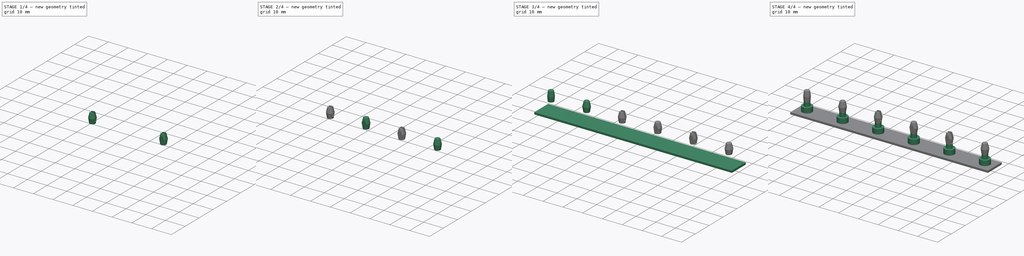
[diagram: build sequence overview — one tinted view per stage of 4, left to right]
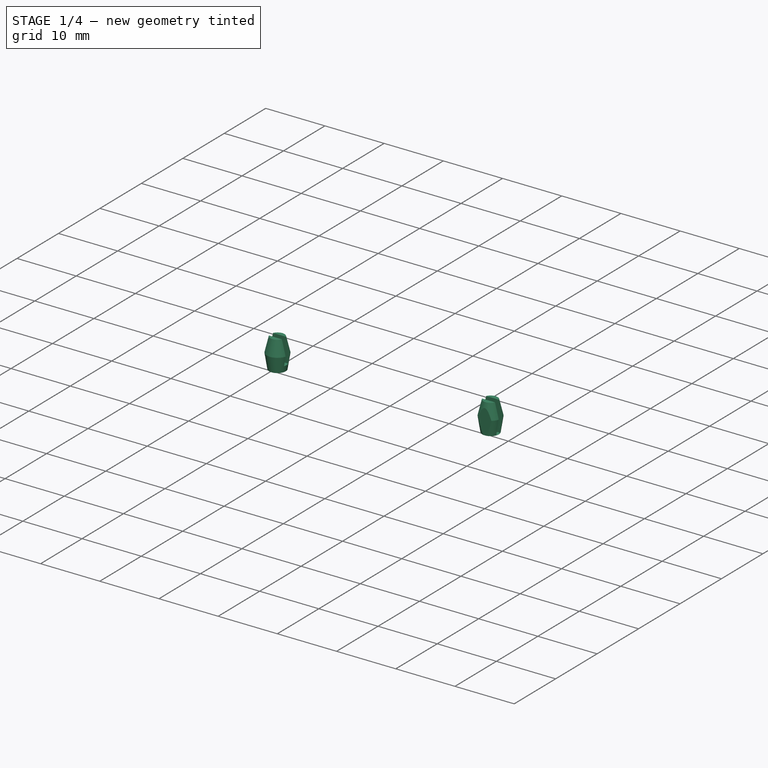
[diagram: stage 1 of 4 — iso view after this stage's code; geometry added in this stage tinted green]
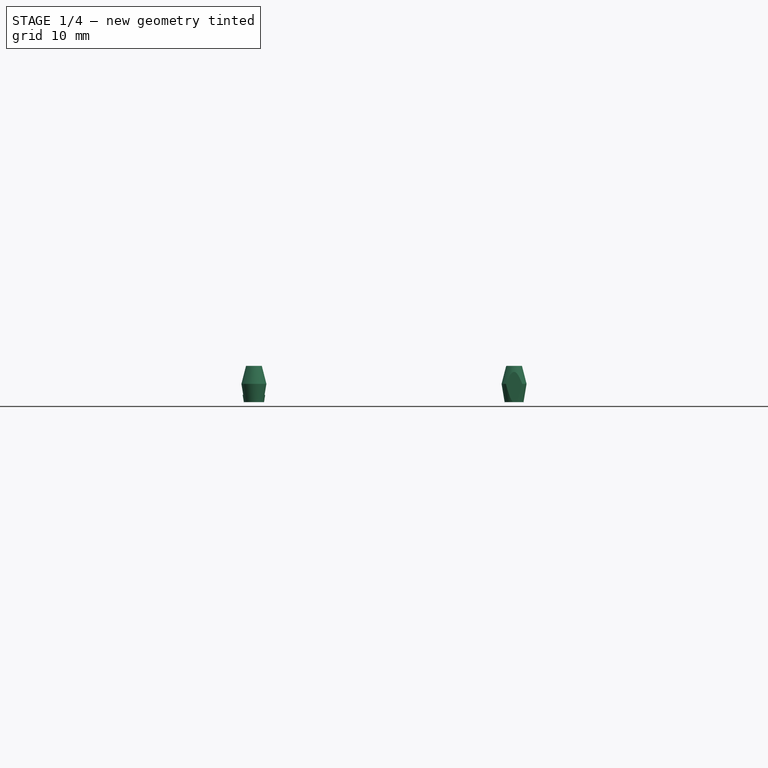
[diagram: stage 1 of 4 — front view after this stage's code; geometry added in this stage tinted green]
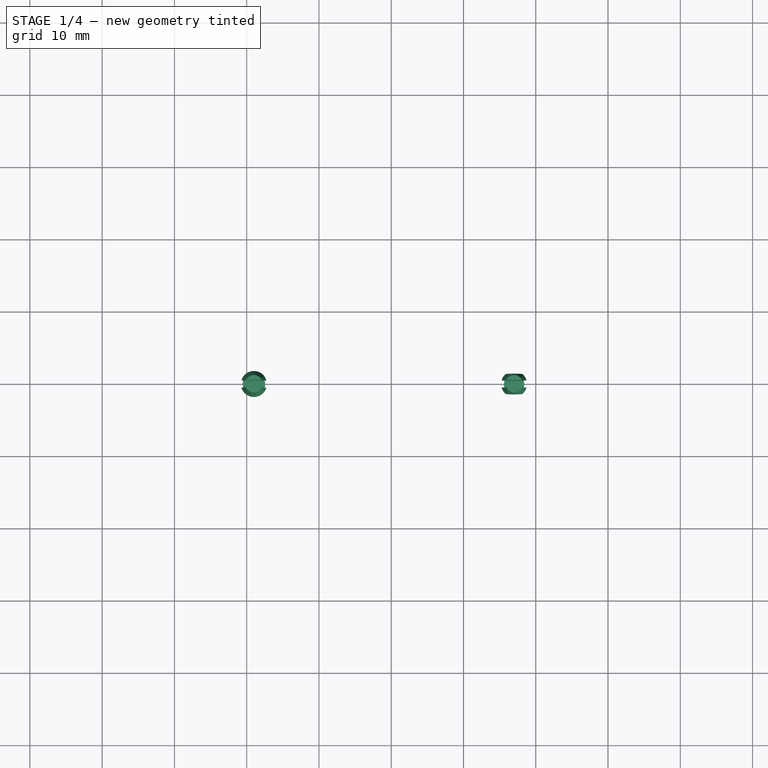
[diagram: stage 1 of 4 — top view after this stage's code; geometry added in this stage tinted green]
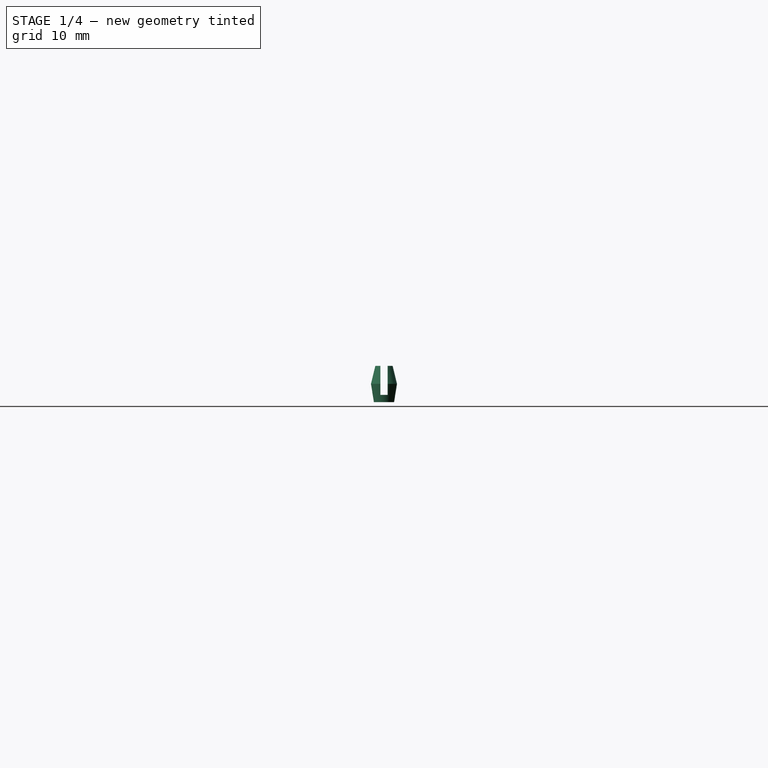
[diagram: stage 1 of 4 — right view after this stage's code; geometry added in this stage tinted green]
FCSTD DOCUMENT  (FreeCAD 0.15R4669 (Git))
Label: clip_test
License: All rights reserved
LicenseURL: http://en.wikipedia.org/wiki/All_rights_reserved
objects: Sketcher::SketchObject×12, PartDesign::Revolution×6, PartDesign::Pad×3, PartDesign::Pocket×3, PartDesign::LinearPattern×2
note: 38 computed .brp shape members not serialized (recipe doc carries the construction recipe); baked Part::Feature solids carry a one-line shape summary decoded from their .brp

FEATURE [Sketcher::SketchObject] Sketch005
  Placement = pos=(0,0,0) rot=(1,0,0;1.5708rad)
  sketch-geometry (6):
    g0: LineSegment StartX=-9 StartY=5.49 StartZ=0 EndX=-9 EndY=10.49 EndZ=0
    g1: LineSegment StartX=-9 StartY=10.49 StartZ=0 EndX=-10.2 EndY=10.49 EndZ=0
    g2: LineSegment StartX=-10.2 StartY=10.49 StartZ=0 EndX=-10.8 EndY=8.01 EndZ=0
    g3: LineSegment StartX=-10.8 StartY=8.01 StartZ=0 EndX=-10.4 EndY=5.49 EndZ=0
    g4: LineSegment StartX=-10.4 StartY=5.49 StartZ=0 EndX=-9 EndY=5.49 EndZ=0
    g5: LineSegment [constr] StartX=-9 StartY=14.9948 StartZ=0 EndX=-9 EndY=20 EndZ=0
  constraints (17):
    c: Vertical(g0)
    c: Coincident(g0,g1)
    c: Coincident(g1,g2)
    c: Coincident(g2,g3)
    c: Coincident(g3,g4)
    c: Coincident(g4,g0)
    c: DistanceX(g-1,g0) = -9
    c: Horizontal(g1)
    c: Horizontal(g4)
    c: Equal(g3,g2)
    c: DistanceX(g2,g0) = 1.8
    c: DistanceX(g3,g0) = 1.4
    c: DistanceX(g1,g0) = 1.2
    c: DistanceY(g-1,g0) = 5.49
    c: DistanceY(g0,g3) = -5
    c: Vertical(g5)
    c: DistanceX(g5,g0) = 0
FEATURE [PartDesign::Revolution] Revolution002
  Angle = 360
  Axis = (0,0,5.00523)
  Base = (-9,0,14.9948)
  Placement = pos=(0,0,0) rot=(1,0,0;1.5708rad)
  ReferenceAxis = -> Sketch005 [Axis0]
  Sketch = -> Sketch005
FEATURE [Sketcher::SketchObject] Sketch007
  Placement = pos=(0,0,0) rot=(1,0,0;1.5708rad)
  sketch-geometry (6):
    g0: LineSegment StartX=27 StartY=5.49 StartZ=0 EndX=27 EndY=10.49 EndZ=0
    g1: LineSegment StartX=27 StartY=10.49 StartZ=0 EndX=25.8 EndY=10.49 EndZ=0
    g2: LineSegment StartX=25.8 StartY=10.49 StartZ=0 EndX=25.2 EndY=8.01 EndZ=0
    g3: LineSegment StartX=25.2 StartY=8.01 StartZ=0 EndX=25.6 EndY=5.49 EndZ=0
    g4: LineSegment StartX=25.6 StartY=5.49 StartZ=0 EndX=27 EndY=5.49 EndZ=0
    g5: LineSegment [constr] StartX=27 StartY=14.6475 StartZ=0 EndX=27 EndY=20 EndZ=0
  constraints (17):
    c: Vertical(g0)
    c: Coincident(g0,g1)
    c: Coincident(g1,g2)
    c: Coincident(g2,g3)
    c: Coincident(g3,g4)
    c: Coincident(g4,g0)
    c: Horizontal(g1)
    c: Horizontal(g4)
    c: Equal(g3,g2)
    c: DistanceX(g2,g0) = 1.8
    c: DistanceX(g3,g0) = 1.4
    c: DistanceX(g1,g0) = 1.2
    c: DistanceY(g-1,g0) = 5.49
    c: DistanceY(g0,g3) = -5
    c: Vertical(g5)
    c: DistanceX(g5,g0) = 0
    c: DistanceX(g-1,g0) = 27
FEATURE [PartDesign::Revolution] Revolution004
  Angle = 360
  Axis = (0,0,5.35254)
  Base = (27,0,14.6475)
  Placement = pos=(0,0,0) rot=(1,0,0;1.5708rad)
  ReferenceAxis = -> Sketch007 [Axis0]
  Sketch = -> Sketch007
FEATURE [Sketcher::SketchObject] Sketch010
  ExternalGeometry = -> [Revolution002]
  Placement = pos=(0,0,10.49) rot=(0,0,1;3.14159rad)
  Support = -> Revolution002 [Face1]
  sketch-geometry (4):
    g0: LineSegment StartX=2.78732 StartY=0.5 StartZ=0 EndX=16.5607 EndY=0.5 EndZ=0
    g1: LineSegment StartX=16.5607 StartY=0.5 StartZ=0 EndX=16.5607 EndY=-0.5 EndZ=0
    g2: LineSegment StartX=16.5607 StartY=-0.5 StartZ=0 EndX=2.78732 EndY=-0.5 EndZ=0
    g3: LineSegment StartX=2.78732 StartY=-0.5 StartZ=0 EndX=2.78732 EndY=0.5 EndZ=0
  constraints (10):
    c: Coincident(g0,g1)
    c: Coincident(g1,g2)
    c: Coincident(g2,g3)
    c: Coincident(g3,g0)
    c: Horizontal(g0)
    c: Horizontal(g2)
    c: Vertical(g1)
    c: Vertical(g3)
    c: DistanceY(g2,g-3) = 0.5
    c: DistanceY(g0,g2) = -1
FEATURE [PartDesign::Pocket] Pocket001
  Length = 4
  Placement = pos=(0,0,0) rot=(1,0,0;1.5708rad)
  Sketch = -> Sketch010
  Type = 0
FEATURE [Sketcher::SketchObject] Sketch011
  ExternalGeometry = -> [Revolution004]
  Placement = pos=(0,0,10.49) rot=(0,0,1;3.14159rad)
  Support = -> Revolution004 [Face1]
  sketch-geometry (12):
    g0: LineSegment StartX=-20 StartY=-0.5 StartZ=0 EndX=-34.5975 EndY=-0.5 EndZ=0
    g1: LineSegment StartX=-34.5975 StartY=-0.5 StartZ=0 EndX=-34.5975 EndY=0.5 EndZ=0
    g2: LineSegment StartX=-34.5975 StartY=0.5 StartZ=0 EndX=-20 EndY=0.5 EndZ=0
    g3: LineSegment StartX=-20 StartY=0.5 StartZ=0 EndX=-20 EndY=-0.5 EndZ=0
    g4: LineSegment StartX=-17.8728 StartY=-10 StartZ=0 EndX=-35.7219 EndY=-10 EndZ=0
    g5: LineSegment StartX=-35.7219 StartY=-10 StartZ=0 EndX=-35.7219 EndY=-1.4 EndZ=0
    g6: LineSegment StartX=-35.7219 StartY=-1.4 StartZ=0 EndX=-17.8728 EndY=-1.4 EndZ=0
    g7: LineSegment StartX=-17.8728 StartY=-1.4 StartZ=0 EndX=-17.8728 EndY=-10 EndZ=0
    g8: LineSegment StartX=-16.5517 StartY=10 StartZ=0 EndX=-35.5251 EndY=10 EndZ=0
    g9: LineSegment StartX=-35.5251 StartY=10 StartZ=0 EndX=-35.5251 EndY=1.4 EndZ=0
    g10: LineSegment StartX=-35.5251 StartY=1.4 StartZ=0 EndX=-16.5517 EndY=1.4 EndZ=0
    g11: LineSegment StartX=-16.5517 StartY=1.4 StartZ=0 EndX=-16.5517 EndY=10 EndZ=0
  constraints (28):
    c: Coincident(g0,g1)
    c: Coincident(g1,g2)
    c: Coincident(g2,g3)
    c: Coincident(g3,g0)
    c: Horizontal(g0)
    c: Horizontal(g2)
    c: Vertical(g1)
    c: Vertical(g3)
    c: DistanceY(g2,g-3) = -0.5
    c: DistanceY(g-3,g0) = -0.5
    c: Coincident(g4,g5)
    c: Coincident(g5,g6)
    c: Coincident(g6,g7)
    c: Coincident(g7,g4)
    c: Horizontal(g4)
    c: Horizontal(g6)
    c: Vertical(g5)
    c: Vertical(g7)
    c: DistanceY(g-3,g6) = -1.4
    c: Coincident(g8,g9)
    c: Coincident(g9,g10)
    c: Coincident(g10,g11)
    c: Coincident(g11,g8)
    c: Horizontal(g8)
    c: Horizontal(g10)
    c: Vertical(g9)
    c: Vertical(g11)
    c: DistanceY(g10,g-3) = -1.4
FEATURE [PartDesign::Pocket] Pocket002
  Length = 4.99
  Placement = pos=(0,0,0) rot=(1,0,0;1.5708rad)
  Sketch = -> Sketch011
  Type = 0
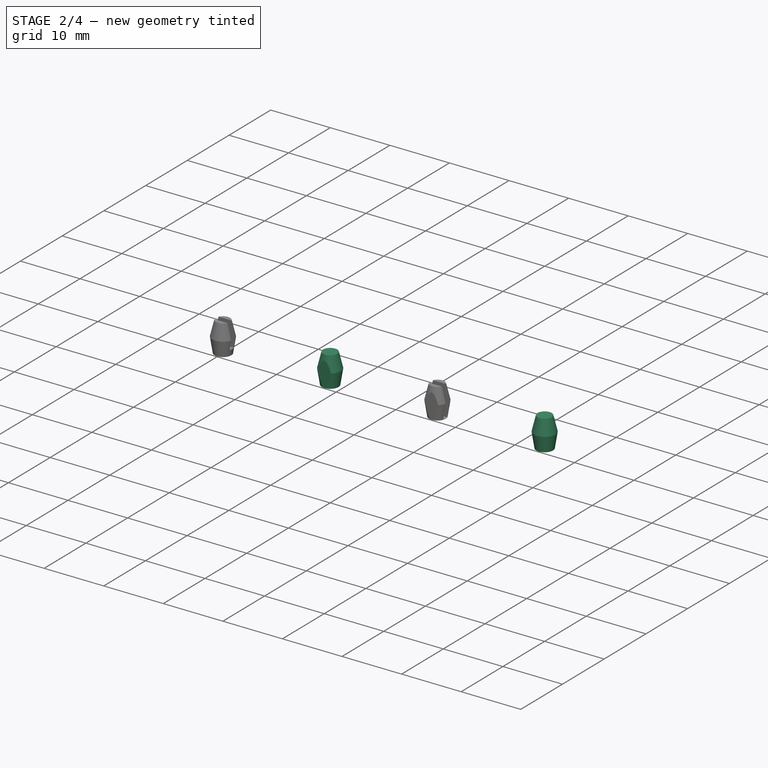
[diagram: stage 2 of 4 — iso view after this stage's code; geometry added in this stage tinted green]
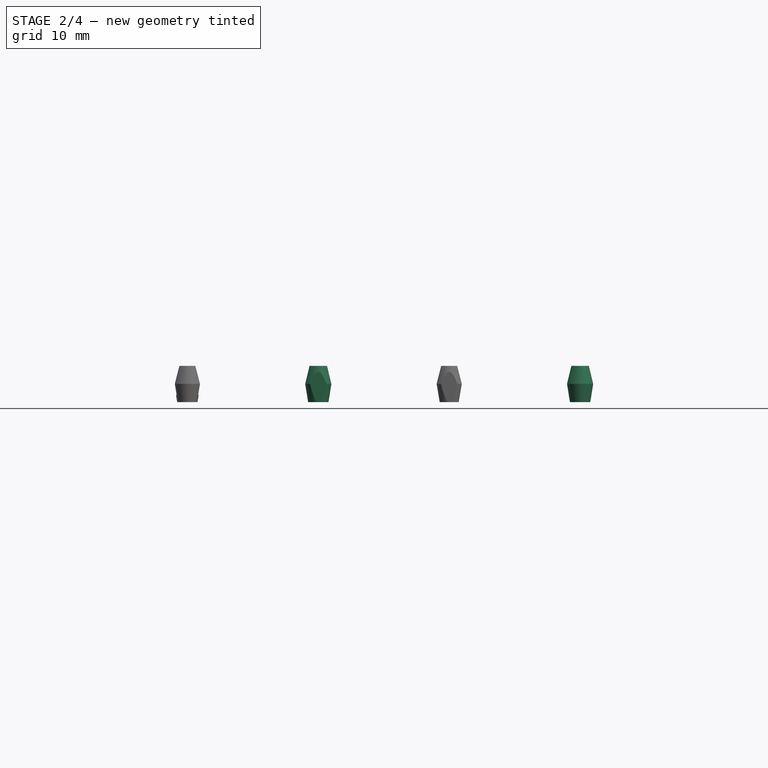
[diagram: stage 2 of 4 — front view after this stage's code; geometry added in this stage tinted green]
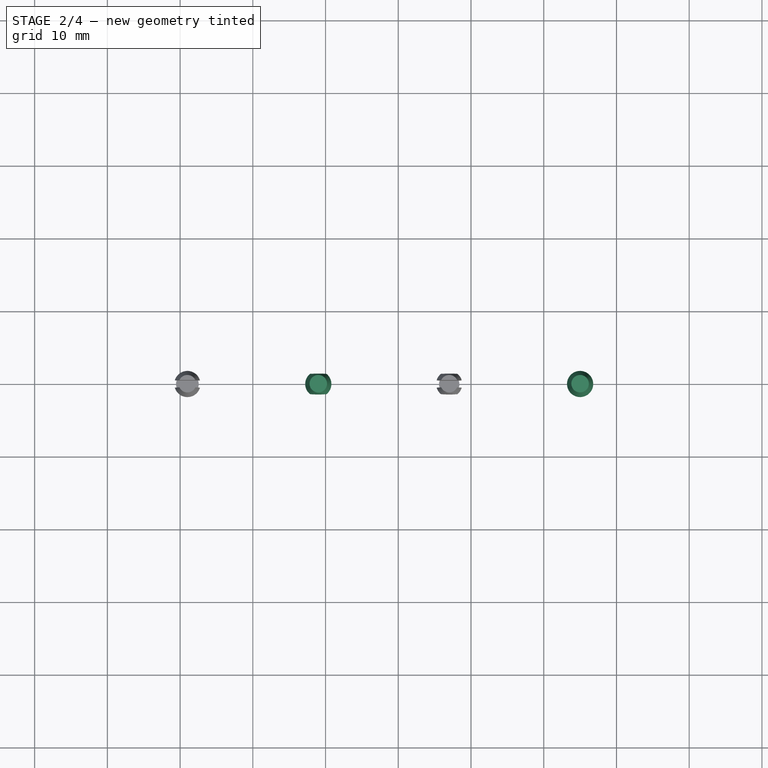
[diagram: stage 2 of 4 — top view after this stage's code; geometry added in this stage tinted green]
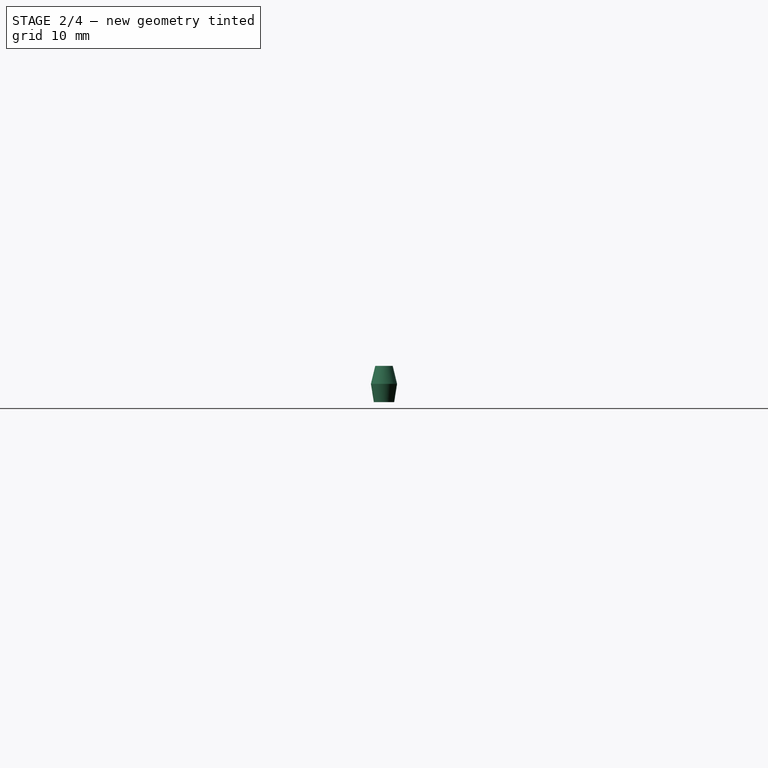
[diagram: stage 2 of 4 — right view after this stage's code; geometry added in this stage tinted green]
FEATURE [Sketcher::SketchObject] Sketch006
  Placement = pos=(0,0,0) rot=(1,0,0;1.5708rad)
  sketch-geometry (6):
    g0: LineSegment StartX=9 StartY=5.49 StartZ=0 EndX=9 EndY=10.49 EndZ=0
    g1: LineSegment StartX=9 StartY=10.49 StartZ=0 EndX=7.8 EndY=10.49 EndZ=0
    g2: LineSegment StartX=7.8 StartY=10.49 StartZ=0 EndX=7.2 EndY=8.01 EndZ=0
    g3: LineSegment StartX=7.2 StartY=8.01 StartZ=0 EndX=7.6 EndY=5.49 EndZ=0
    g4: LineSegment StartX=7.6 StartY=5.49 StartZ=0 EndX=9 EndY=5.49 EndZ=0
    g5: LineSegment [constr] StartX=9 StartY=14.6475 StartZ=0 EndX=9 EndY=20 EndZ=0
  constraints (17):
    c: Vertical(g0)
    c: Coincident(g0,g1)
    c: Coincident(g1,g2)
    c: Coincident(g2,g3)
    c: Coincident(g3,g4)
    c: Coincident(g4,g0)
    c: Horizontal(g1)
    c: Horizontal(g4)
    c: Equal(g3,g2)
    c: DistanceX(g2,g0) = 1.8
    c: DistanceX(g3,g0) = 1.4
    c: DistanceX(g1,g0) = 1.2
    c: DistanceY(g-1,g0) = 5.49
    c: DistanceY(g0,g3) = -5
    c: Vertical(g5)
    c: DistanceX(g5,g0) = 0
    c: DistanceX(g-1,g0) = 9
FEATURE [PartDesign::Revolution] Revolution003
  Angle = 360
  Axis = (0,0,5.35254)
  Base = (9,0,14.6475)
  Placement = pos=(0,0,0) rot=(1,0,0;1.5708rad)
  ReferenceAxis = -> Sketch006 [Axis0]
  Sketch = -> Sketch006
FEATURE [Sketcher::SketchObject] Sketch008
  Placement = pos=(0,0,0) rot=(1,0,0;1.5708rad)
  sketch-geometry (6):
    g0: LineSegment StartX=45 StartY=5.49 StartZ=0 EndX=45 EndY=10.49 EndZ=0
    g1: LineSegment StartX=45 StartY=10.49 StartZ=0 EndX=43.8 EndY=10.49 EndZ=0
    g2: LineSegment StartX=43.8 StartY=10.49 StartZ=0 EndX=43.2 EndY=8.01 EndZ=0
    g3: LineSegment StartX=43.2 StartY=8.01 StartZ=0 EndX=43.6 EndY=5.49 EndZ=0
    g4: LineSegment StartX=43.6 StartY=5.49 StartZ=0 EndX=45 EndY=5.49 EndZ=0
    g5: LineSegment [constr] StartX=45 StartY=14.6475 StartZ=0 EndX=45 EndY=20 EndZ=0
  constraints (17):
    c: Vertical(g0)
    c: Coincident(g0,g1)
    c: Coincident(g1,g2)
    c: Coincident(g2,g3)
    c: Coincident(g3,g4)
    c: Coincident(g4,g0)
    c: Horizontal(g1)
    c: Horizontal(g4)
    c: Equal(g3,g2)
    c: DistanceX(g2,g0) = 1.8
    c: DistanceX(g3,g0) = 1.4
    c: DistanceX(g1,g0) = 1.2
    c: DistanceY(g-1,g0) = 5.49
    c: DistanceY(g0,g3) = -5
    c: Vertical(g5)
    c: DistanceX(g5,g0) = 0
    c: DistanceX(g-1,g0) = 45
FEATURE [PartDesign::Revolution] Revolution005
  Angle = 360
  Axis = (0,0,5.35254)
  Base = (45,0,14.6475)
  Placement = pos=(0,0,0) rot=(1,0,0;1.5708rad)
  ReferenceAxis = -> Sketch008 [Axis0]
  Sketch = -> Sketch008
FEATURE [Sketcher::SketchObject] Sketch009
  ExternalGeometry = -> [Revolution003]
  Placement = pos=(0,0,10.49) rot=(0,0,1;3.14159rad)
  Support = -> Revolution003 [Face1]
  sketch-geometry (8):
    g0: LineSegment StartX=-12.9855 StartY=4.4 StartZ=0 EndX=-4.97687 EndY=4.4 EndZ=0
    g1: LineSegment StartX=-4.97687 StartY=4.4 StartZ=0 EndX=-4.97687 EndY=1.4 EndZ=0
    g2: LineSegment StartX=-4.97687 StartY=1.4 StartZ=0 EndX=-12.9855 EndY=1.4 EndZ=0
    g3: LineSegment StartX=-12.9855 StartY=1.4 StartZ=0 EndX=-12.9855 EndY=4.4 EndZ=0
    g4: LineSegment StartX=-13.1244 StartY=-4.4 StartZ=0 EndX=-4.94839 EndY=-4.4 EndZ=0
    g5: LineSegment StartX=-4.94839 StartY=-4.4 StartZ=0 EndX=-4.94839 EndY=-1.4 EndZ=0
    g6: LineSegment StartX=-4.94839 StartY=-1.4 StartZ=0 EndX=-13.1244 EndY=-1.4 EndZ=0
    g7: LineSegment StartX=-13.1244 StartY=-1.4 StartZ=0 EndX=-13.1244 EndY=-4.4 EndZ=0
  constraints (20):
    c: Coincident(g0,g1)
    c: Coincident(g1,g2)
    c: Coincident(g2,g3)
    c: Coincident(g3,g0)
    c: Horizontal(g0)
    c: Horizontal(g2)
    c: Vertical(g1)
    c: Vertical(g3)
    c: DistanceY(g1,g-3) = -1.4
    c: Coincident(g4,g5)
    c: Coincident(g5,g6)
    c: Coincident(g6,g7)
    c: Coincident(g7,g4)
    c: Horizontal(g4)
    c: Horizontal(g6)
    c: Vertical(g5)
    c: Vertical(g7)
    c: DistanceY(g6,g-3) = 1.4
    c: DistanceY(g6,g4) = -3
    c: DistanceY(g2,g0) = 3
FEATURE [PartDesign::Pocket] Pocket
  Length = 5
  Placement = pos=(0,0,0) rot=(1,0,0;1.5708rad)
  Sketch = -> Sketch009
  Type = 0
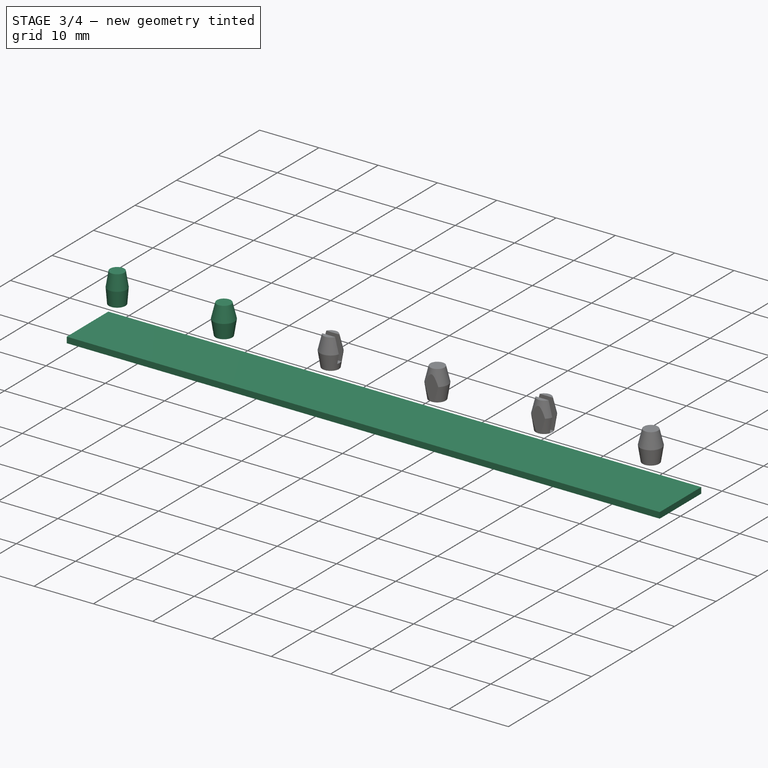
[diagram: stage 3 of 4 — iso view after this stage's code; geometry added in this stage tinted green]
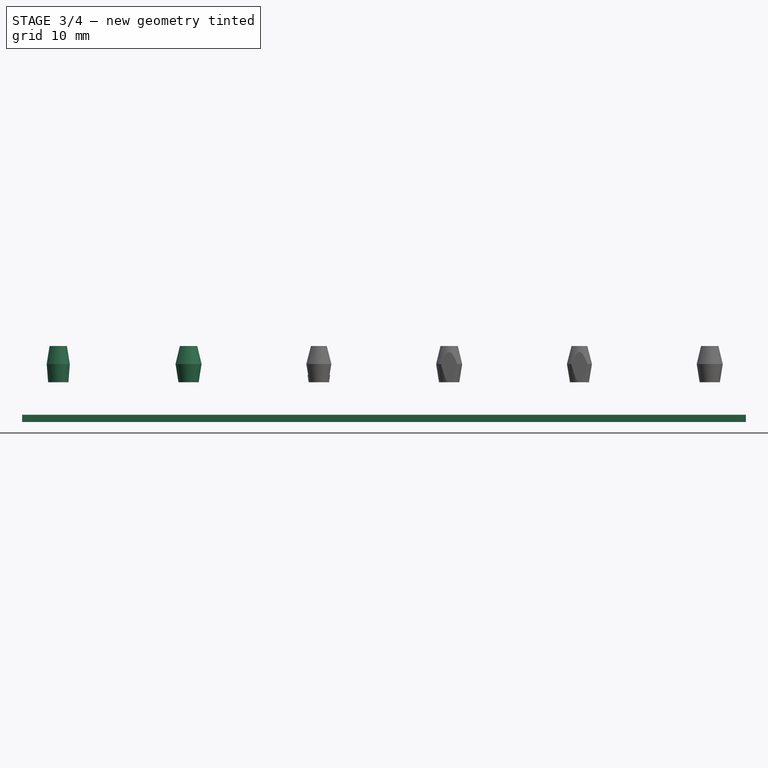
[diagram: stage 3 of 4 — front view after this stage's code; geometry added in this stage tinted green]
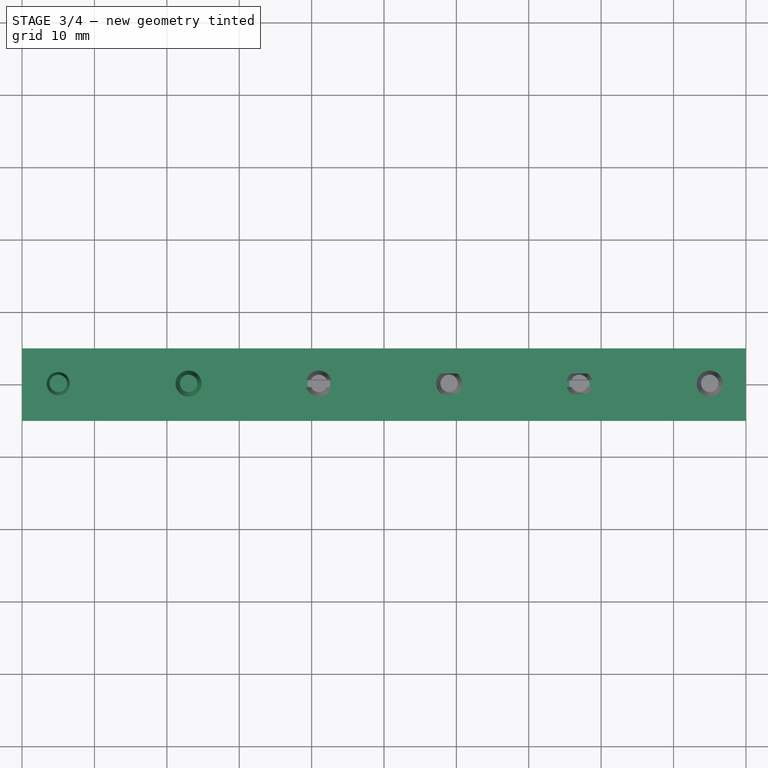
[diagram: stage 3 of 4 — top view after this stage's code; geometry added in this stage tinted green]
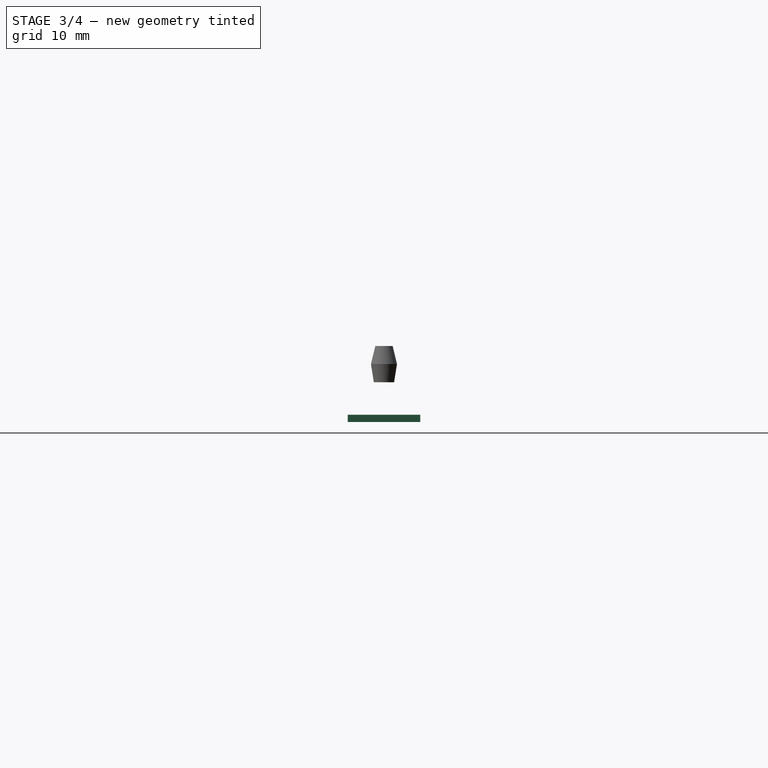
[diagram: stage 3 of 4 — right view after this stage's code; geometry added in this stage tinted green]
FEATURE [Sketcher::SketchObject] Sketch
  sketch-geometry (4):
    g0: LineSegment StartX=-50 StartY=5 StartZ=0 EndX=50 EndY=5 EndZ=0
    g1: LineSegment StartX=50 StartY=5 StartZ=0 EndX=50 EndY=-5 EndZ=0
    g2: LineSegment StartX=50 StartY=-5 StartZ=0 EndX=-50 EndY=-5 EndZ=0
    g3: LineSegment StartX=-50 StartY=-5 StartZ=0 EndX=-50 EndY=5 EndZ=0
  constraints (11):
    c: Coincident(g0,g1)
    c: Coincident(g1,g2)
    c: Coincident(g2,g3)
    c: Coincident(g3,g0)
    c: Horizontal(g0)
    c: Horizontal(g2)
    c: Vertical(g1)
    c: Vertical(g3)
    c: DistanceY(g0,g2) = -10
    c: Symmetric(g0,g1,g-1)
    c: DistanceX(g0,g0) = 100
FEATURE [PartDesign::Pad] Pad
  Length = 1
  Length2 = 100
  Sketch = -> Sketch
  Type = 0
FEATURE [Sketcher::SketchObject] Sketch003
  Placement = pos=(0,0,0) rot=(-1,0,0;4.71239rad)
  sketch-geometry (6):
    g0: LineSegment StartX=-45 StartY=5.49 StartZ=0 EndX=-45 EndY=10.49 EndZ=0
    g1: LineSegment StartX=-45 StartY=10.49 StartZ=0 EndX=-46.2 EndY=10.49 EndZ=0
    g2: LineSegment StartX=-46.2 StartY=10.49 StartZ=0 EndX=-46.6 EndY=8.002 EndZ=0
    g3: LineSegment StartX=-46.6 StartY=8.002 StartZ=0 EndX=-46.4 EndY=5.49 EndZ=0
    g4: LineSegment StartX=-46.4 StartY=5.49 StartZ=0 EndX=-45 EndY=5.49 EndZ=0
    g5: LineSegment [constr] StartX=-45 StartY=14.9948 StartZ=0 EndX=-45 EndY=20 EndZ=0
  constraints (17):
    c: Vertical(g0)
    c: Coincident(g0,g1)
    c: Coincident(g1,g2)
    c: Coincident(g2,g3)
    c: Coincident(g3,g4)
    c: Coincident(g4,g0)
    c: DistanceX(g-1,g0) = -45
    c: Horizontal(g1)
    c: Horizontal(g4)
    c: Equal(g3,g2)
    c: DistanceX(g2,g0) = 1.6
    c: DistanceX(g3,g0) = 1.4
    c: DistanceX(g1,g0) = 1.2
    c: DistanceY(g-1,g0) = 5.49
    c: DistanceY(g0,g3) = -5
    c: Vertical(g5)
    c: DistanceX(g5,g0) = 0
FEATURE [PartDesign::Revolution] Revolution
  Angle = 360
  Axis = (0,0,5.00523)
  Base = (-45,0,14.9948)
  Placement = pos=(0,0,0) rot=(-1,0,0;4.71239rad)
  ReferenceAxis = -> Sketch003 [Axis0]
  Sketch = -> Sketch003
FEATURE [Sketcher::SketchObject] Sketch004
  Placement = pos=(0,0,0) rot=(1,0,0;1.5708rad)
  sketch-geometry (6):
    g0: LineSegment StartX=-27 StartY=5.49 StartZ=0 EndX=-27 EndY=10.49 EndZ=0
    g1: LineSegment StartX=-27 StartY=10.49 StartZ=0 EndX=-28.2 EndY=10.49 EndZ=0
    g2: LineSegment StartX=-28.2 StartY=10.49 StartZ=0 EndX=-28.8 EndY=8.01 EndZ=0
    g3: LineSegment StartX=-28.8 StartY=8.01 StartZ=0 EndX=-28.4 EndY=5.49 EndZ=0
    g4: LineSegment StartX=-28.4 StartY=5.49 StartZ=0 EndX=-27 EndY=5.49 EndZ=0
    g5: LineSegment [constr] StartX=-27 StartY=14.9948 StartZ=0 EndX=-27 EndY=20 EndZ=0
  constraints (17):
    c: Vertical(g0)
    c: Coincident(g0,g1)
    c: Coincident(g1,g2)
    c: Coincident(g2,g3)
    c: Coincident(g3,g4)
    c: Coincident(g4,g0)
    c: DistanceX(g-1,g0) = -27
    c: Horizontal(g1)
    c: Horizontal(g4)
    c: Equal(g3,g2)
    c: DistanceX(g2,g0) = 1.8
    c: DistanceX(g3,g0) = 1.4
    c: DistanceX(g1,g0) = 1.2
    c: DistanceY(g-1,g0) = 5.49
    c: DistanceY(g0,g3) = -5
    c: Vertical(g5)
    c: DistanceX(g5,g0) = 0
FEATURE [PartDesign::Revolution] Revolution001
  Angle = 360
  Axis = (0,0,5.00523)
  Base = (-27,0,14.9948)
  Placement = pos=(0,0,0) rot=(1,0,0;1.5708rad)
  ReferenceAxis = -> Sketch004 [Axis0]
  Sketch = -> Sketch004
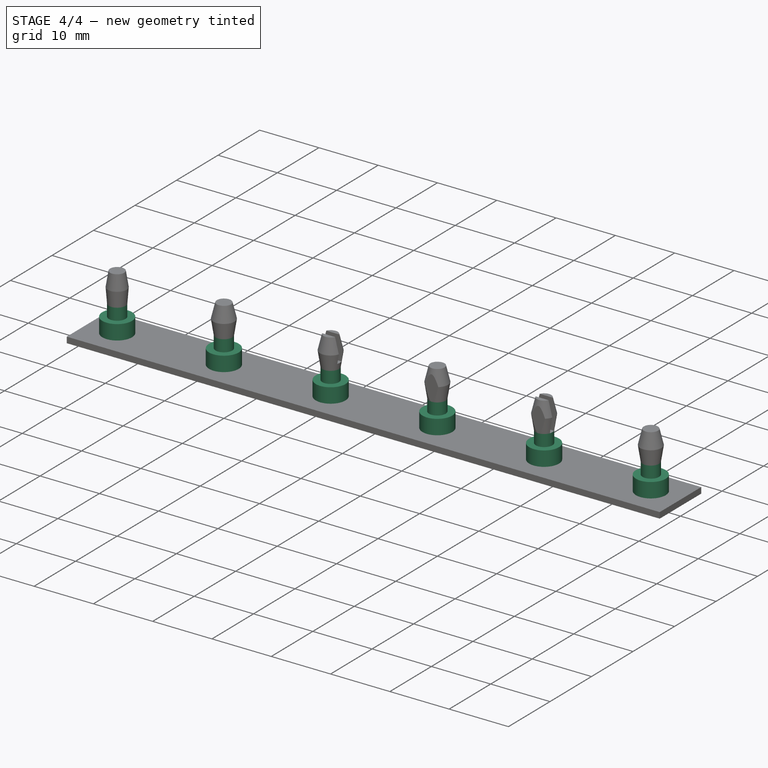
[diagram: stage 4 of 4 — iso view after this stage's code; geometry added in this stage tinted green]
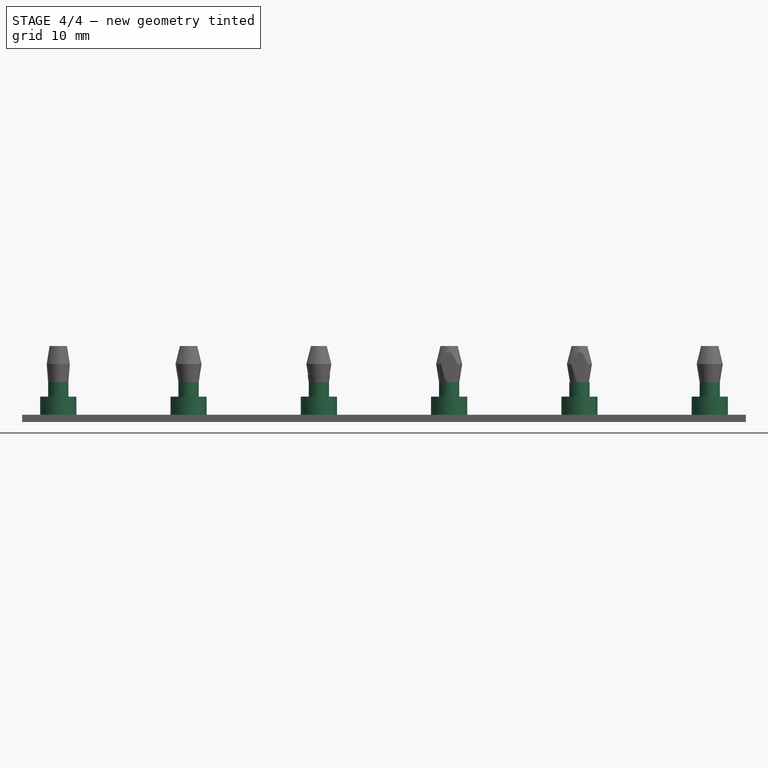
[diagram: stage 4 of 4 — front view after this stage's code; geometry added in this stage tinted green]
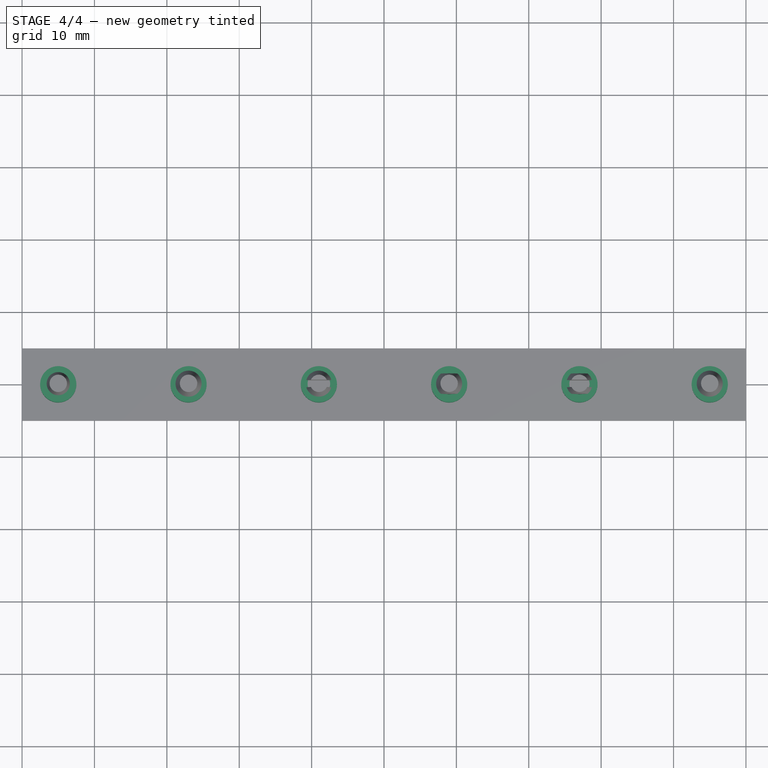
[diagram: stage 4 of 4 — top view after this stage's code; geometry added in this stage tinted green]
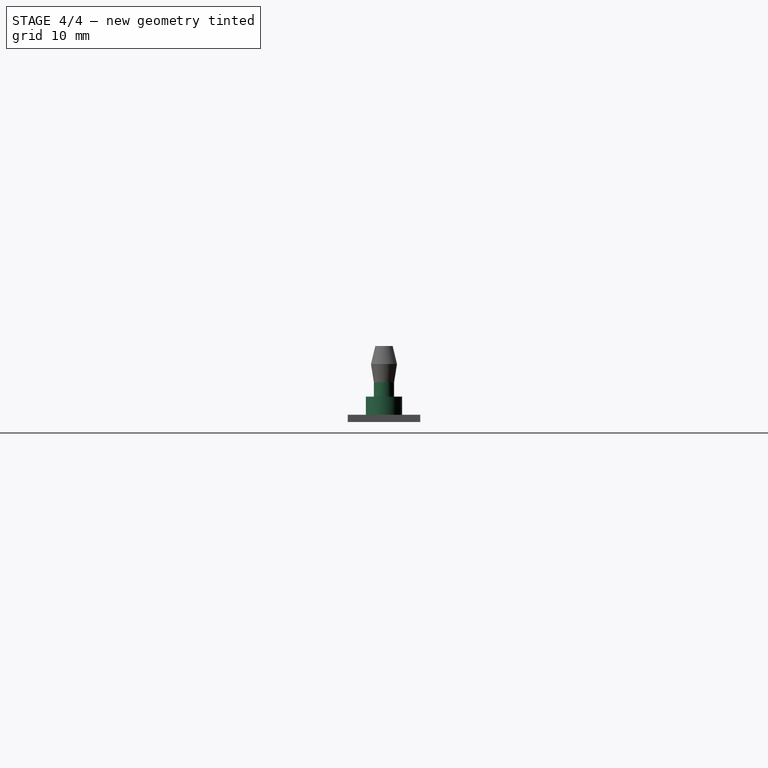
[diagram: stage 4 of 4 — right view after this stage's code; geometry added in this stage tinted green]
FEATURE [Sketcher::SketchObject] Sketch001
  Placement = pos=(0,0,1) rot=(0,0,1;0rad)
  Support = -> Pad [Face6]
  sketch-geometry (1):
    g0: Circle CenterX=-45 CenterY=0 CenterZ=0 NormalX=0 NormalY=0 NormalZ=1 Radius=2.5
  constraints (3):
    c: PointOnObject(g0,g-1)
    c: Radius(g0) = 2.5
    c: DistanceX(g-1,g0) = -45
FEATURE [PartDesign::Pad] Pad001
  Length = 2.5
  Length2 = 100
  Sketch = -> Sketch001
  Type = 0
FEATURE [PartDesign::LinearPattern] LinearPattern
  Direction = -> Sketch001 [H_Axis]
  Length = 90
  Occurrences = 6
  Originals = -> [Pad001]
FEATURE [Sketcher::SketchObject] Sketch002
  ExternalGeometry = -> [LinearPattern]
  Placement = pos=(0,0,3.5) rot=(0,0,1;0rad)
  Support = -> LinearPattern [Face18]
  sketch-geometry (1):
    g0: Circle CenterX=-45 CenterY=0 CenterZ=0 NormalX=0 NormalY=0 NormalZ=1 Radius=1.4
  constraints (2):
    c: Coincident(g0,g-3)
    c: Radius(g0) = 1.4
FEATURE [PartDesign::Pad] Pad002
  Length = 2
  Length2 = 100
  Sketch = -> Sketch002
  Type = 0
FEATURE [PartDesign::LinearPattern] LinearPattern001
  Direction = -> Sketch002 [H_Axis]
  Length = 90
  Occurrences = 6
  Originals = -> [Pad002]
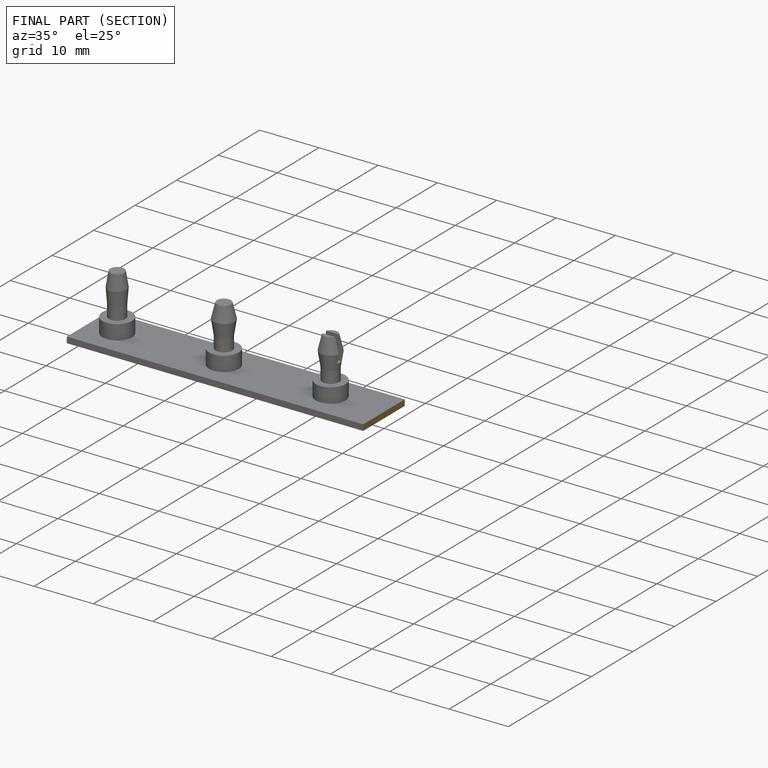
[diagram: finished part — half-section view (interior)]
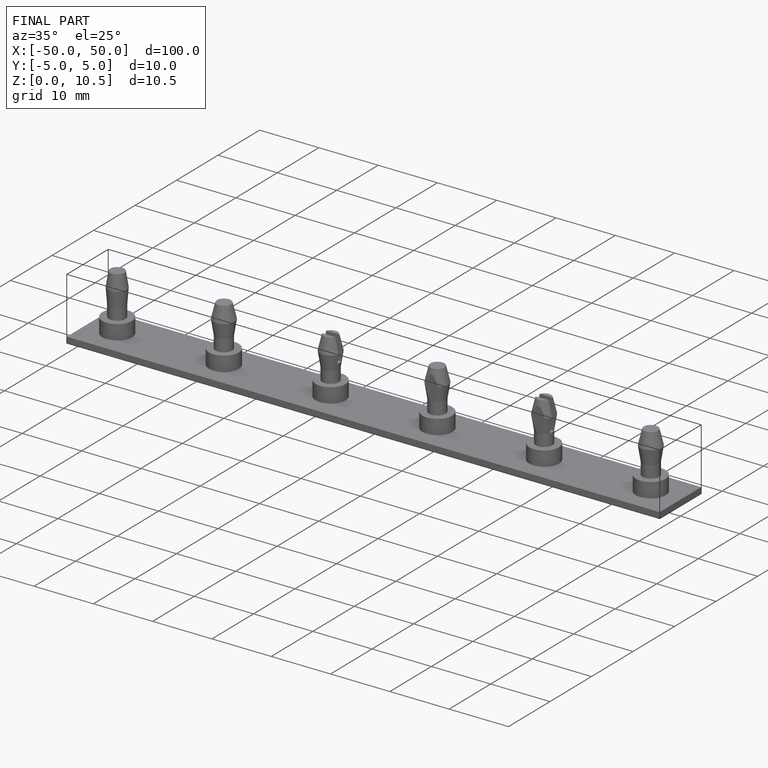
[diagram: finished part — iso view with bounding-box wireframe]
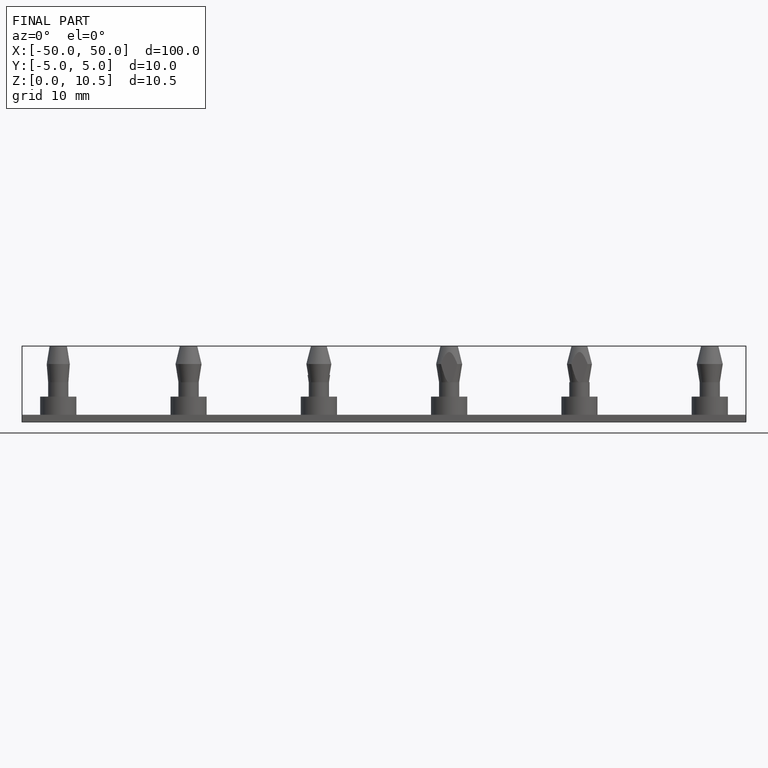
[diagram: finished part — front view with bounding-box wireframe]
